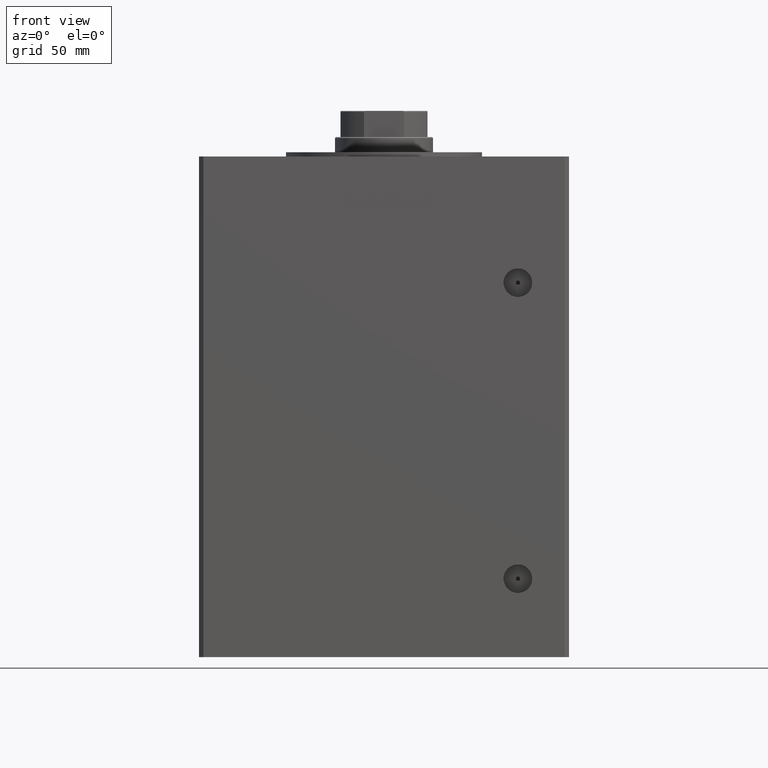
[diagram: clean part render]
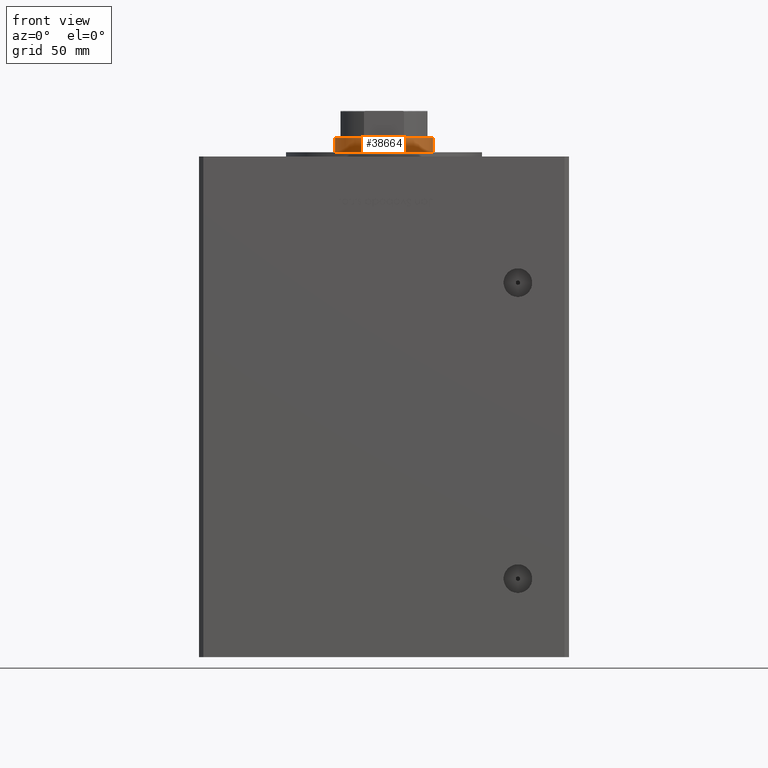
[diagram: same view with one face highlighted and labeled with its STEP entity id]
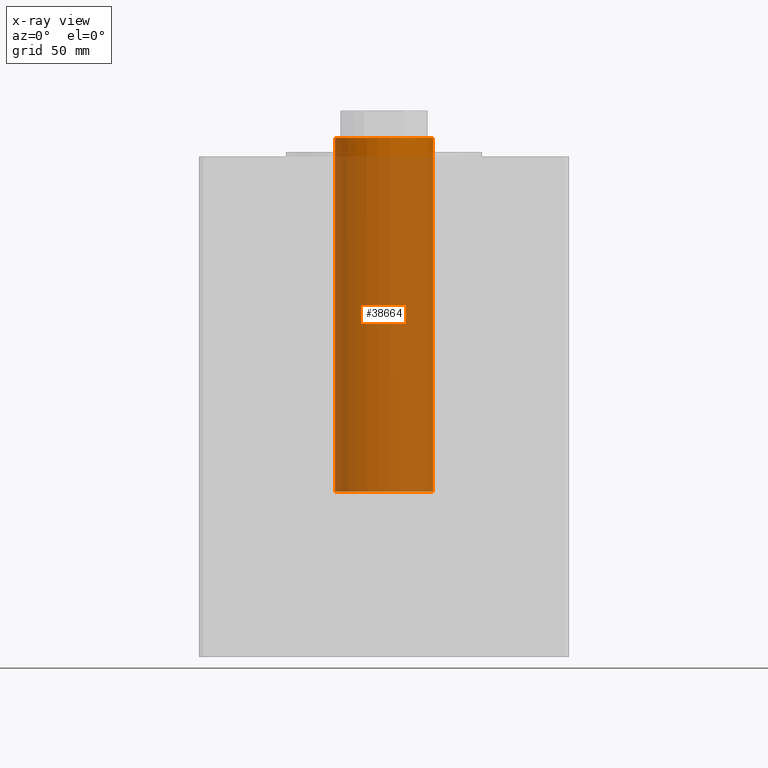
[diagram: x-ray of the same camera — body ghosted, the highlighted face saturated]
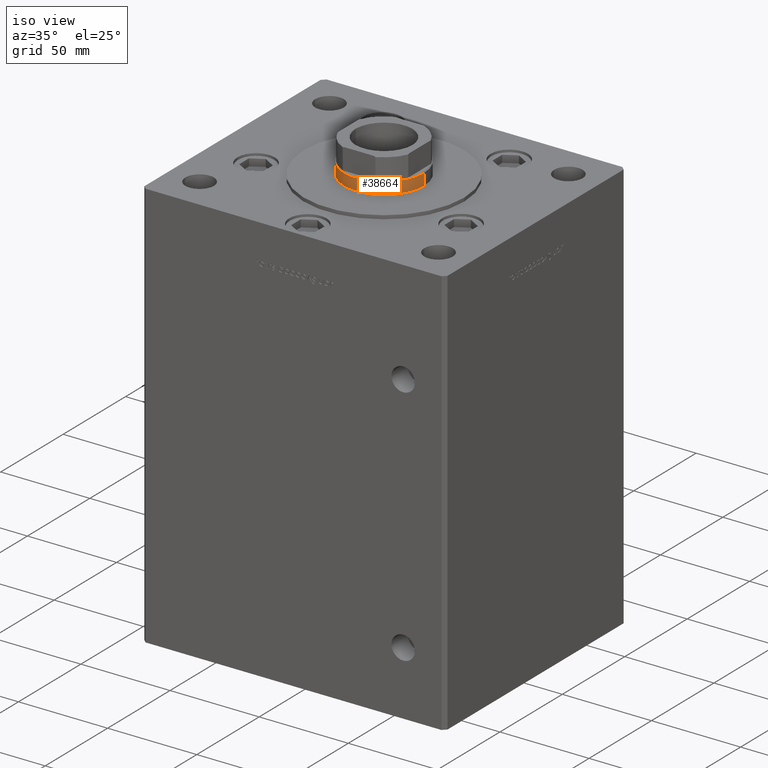
[diagram: same view with one face highlighted and labeled with its STEP entity id]
A machine part, front view. The second image highlights one B-rep face of the part: STEP entity #38664.
The next image is the same camera in x-ray: the body ghosted, the highlighted face saturated — about 95% of this face is hidden behind the body in this view.
A second angle (iso view) of the same face is appended — the face is thin or edge-on in the first view.
In plain terms, the highlighted cylindrical surface (partial cylindrical patch) has radius 22.5 mm, axis along (-0, -0, -1).
Its self-contained STEP definition (entity closure, byte-faithful):
#2298 = CARTESIAN_POINT ( 'NONE',  ( 0.000000000000000000, 0.000000000000000000, 38.00000000000000000 ) ) ;
#2765 = EDGE_CURVE ( 'NONE', #13866, #15827, #35297, .T. ) ;
#3558 = VECTOR ( 'NONE', #38734, 1000.000000000000000 ) ;
#5439 = CARTESIAN_POINT ( 'NONE',  ( -22.50000000000000355, 0.000000000000000000, 200.5000000000000000 ) ) ;
#6775 = DIRECTION ( 'NONE',  ( 1.000000000000000000, 0.000000000000000000, 0.000000000000000000 ) ) ;
#7071 = VERTEX_POINT ( 'NONE', #50549 ) ;
#8831 = CARTESIAN_POINT ( 'NONE',  ( 22.50000000000000355, 2.755455298081545172E-15, 200.5000000000000000 ) ) ;
#9024 = AXIS2_PLACEMENT_3D ( 'NONE', #2298, #22618, #6775 ) ;
#11678 = DIRECTION ( 'NONE',  ( 0.000000000000000000, 0.000000000000000000, -1.000000000000000000 ) ) ;
#13866 = VERTEX_POINT ( 'NONE', #8831 ) ;
#14069 = CIRCLE ( 'NONE', #9024, 22.50000000000000355 ) ;
#14821 = DIRECTION ( 'NONE',  ( -1.000000000000000000, 0.000000000000000000, 0.000000000000000000 ) ) ;
#15827 = VERTEX_POINT ( 'NONE', #43760 ) ;
#19231 = CARTESIAN_POINT ( 'NONE',  ( -22.50000000000000355, 0.000000000000000000, 201.0000000000000000 ) ) ;
#19275 = ORIENTED_EDGE ( 'NONE', *, *, #2765, .F. ) ;
#19310 = DIRECTION ( 'NONE',  ( -0.000000000000000000, -0.000000000000000000, -1.000000000000000000 ) ) ;
#20104 = CARTESIAN_POINT ( 'NONE',  ( 0.000000000000000000, 0.000000000000000000, 200.5000000000000000 ) ) ;
#21873 = AXIS2_PLACEMENT_3D ( 'NONE', #20104, #11678, #44335 ) ;
#22618 = DIRECTION ( 'NONE',  ( 0.000000000000000000, 0.000000000000000000, 1.000000000000000000 ) ) ;
#24806 = EDGE_CURVE ( 'NONE', #47460, #7071, #27408, .T. ) ;
#25048 = ORIENTED_EDGE ( 'NONE', *, *, #24806, .T. ) ;
#26181 = ORIENTED_EDGE ( 'NONE', *, *, #37280, .T. ) ;
#27408 = LINE ( 'NONE', #19231, #43452 ) ;
#29329 = ORIENTED_EDGE ( 'NONE', *, *, #44710, .T. ) ;
#30196 = EDGE_LOOP ( 'NONE', ( #19275, #29329, #25048, #26181 ) ) ;
#30843 = DIRECTION ( 'NONE',  ( -0.000000000000000000, -0.000000000000000000, -1.000000000000000000 ) ) ;
#34532 = CARTESIAN_POINT ( 'NONE',  ( 22.50000000000000355, 2.755455298081545172E-15, 201.0000000000000000 ) ) ;
#35297 = LINE ( 'NONE', #34532, #3558 ) ;
#35632 = CYLINDRICAL_SURFACE ( 'NONE', #51995, 22.50000000000000355 ) ;
#37280 = EDGE_CURVE ( 'NONE', #7071, #15827, #14069, .T. ) ;
#38664 = ADVANCED_FACE ( 'NONE', ( #51964 ), #35632, .T. ) ;
#38734 = DIRECTION ( 'NONE',  ( -0.000000000000000000, -0.000000000000000000, -1.000000000000000000 ) ) ;
#42940 = CIRCLE ( 'NONE', #21873, 22.50000000000000355 ) ;
#43452 = VECTOR ( 'NONE', #30843, 1000.000000000000000 ) ;
#43760 = CARTESIAN_POINT ( 'NONE',  ( 22.50000000000000355, 2.755455298081545172E-15, 38.00000000000000000 ) ) ;
#44335 = DIRECTION ( 'NONE',  ( 1.000000000000000000, 0.000000000000000000, 0.000000000000000000 ) ) ;
#44710 = EDGE_CURVE ( 'NONE', #13866, #47460, #42940, .T. ) ;
#47460 = VERTEX_POINT ( 'NONE', #5439 ) ;
#50549 = CARTESIAN_POINT ( 'NONE',  ( -22.50000000000000355, 0.000000000000000000, 38.00000000000000000 ) ) ;
#51708 = CARTESIAN_POINT ( 'NONE',  ( 0.000000000000000000, 0.000000000000000000, 201.0000000000000000 ) ) ;
#51964 = FACE_OUTER_BOUND ( 'NONE', #30196, .T. ) ;
#51995 = AXIS2_PLACEMENT_3D ( 'NONE', #51708, #19310, #14821 ) ;